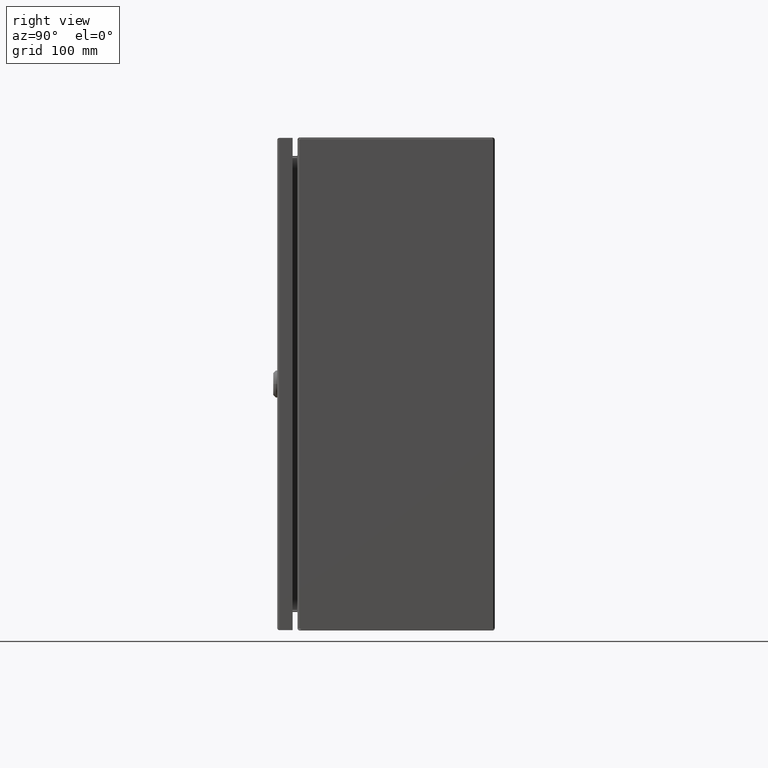
[diagram: clean part render]
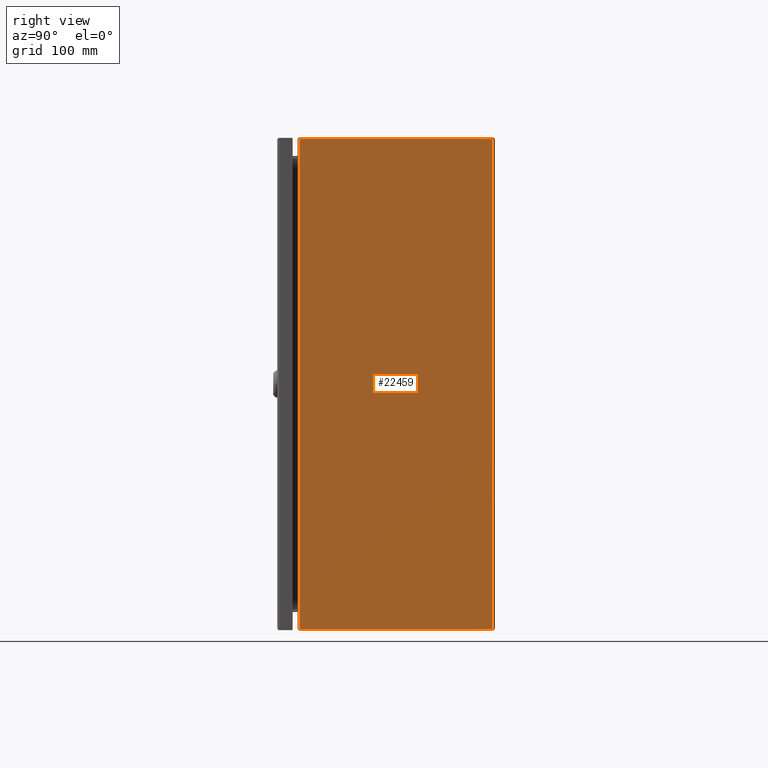
[diagram: same view with one face highlighted and labeled with its STEP entity id]
A machine part, right view. The second image highlights one B-rep face of the part: STEP entity #22459.
In plain terms, the highlighted planar face has unit normal (-1, -0, 0).
Its self-contained STEP definition (entity closure, byte-faithful):
#386 = CARTESIAN_POINT ( 'NONE',  ( 10.00000000000000000, -7.852421903868839870, 9.692888644601419301 ) ) ;
#673 = CARTESIAN_POINT ( 'NONE',  ( 10.00000000000000000, -0.05700000000000000205, -69.44150000000000489 ) ) ;
#1092 = VERTEX_POINT ( 'NONE', #34432 ) ;
#1360 = VERTEX_POINT ( 'NONE', #30995 ) ;
#1929 = ORIENTED_EDGE ( 'NONE', *, *, #3850, .F. ) ;
#2056 = CARTESIAN_POINT ( 'NONE',  ( 9.999999999999998224, -0.08600000000000115885, 9.913999999999999702 ) ) ;
#3045 = DIRECTION ( 'NONE',  ( 0.0000000000000000000, -1.000000000000000000, 0.0000000000000000000 ) ) ;
#3850 = EDGE_CURVE ( 'NONE', #1092, #20268, #32534, .T. ) ;
#4402 = VECTOR ( 'NONE', #31241, 39.37007874015748143 ) ;
#4451 = EDGE_CURVE ( 'NONE', #32431, #14954, #17624, .T. ) ;
#4660 = AXIS2_PLACEMENT_3D ( 'NONE', #386, #31855, #3045 ) ;
#6118 = ORIENTED_EDGE ( 'NONE', *, *, #4451, .F. ) ;
#6170 = LINE ( 'NONE', #17847, #11849 ) ;
#6939 = FACE_OUTER_BOUND ( 'NONE', #23480, .T. ) ;
#9629 = ORIENTED_EDGE ( 'NONE', *, *, #37531, .F. ) ;
#9721 = CARTESIAN_POINT ( 'NONE',  ( 10.00000000000000178, -7.852421903868830100, 9.942888644601380221 ) ) ;
#10313 = CARTESIAN_POINT ( 'NONE',  ( 10.00000000000000000, -0.05700000000000000205, -9.942888644601380221 ) ) ;
#11365 = VERTEX_POINT ( 'NONE', #27537 ) ;
#11849 = VECTOR ( 'NONE', #17289, 39.37007874015748143 ) ;
#12307 = DIRECTION ( 'NONE',  ( -1.000000000000000000, -2.771339582717989839E-16, 1.573611165464029883E-17 ) ) ;
#12591 = DIRECTION ( 'NONE',  ( -1.000000000000000000, -3.713031427099139786E-16, 1.573611165464029883E-17 ) ) ;
#12783 = DIRECTION ( 'NONE',  ( 0.0000000000000000000, -1.000000000000000000, 0.0000000000000000000 ) ) ;
#13200 = LINE ( 'NONE', #10313, #13582 ) ;
#13582 = VECTOR ( 'NONE', #19116, 39.37007874015748143 ) ;
#14954 = VERTEX_POINT ( 'NONE', #20144 ) ;
#15044 = ORIENTED_EDGE ( 'NONE', *, *, #35451, .F. ) ;
#15889 = AXIS2_PLACEMENT_3D ( 'NONE', #673, #12307, #23975 ) ;
#16046 = ORIENTED_EDGE ( 'NONE', *, *, #24367, .F. ) ;
#17289 = DIRECTION ( 'NONE',  ( 1.573611165464029883E-17, 4.361010910657453997E-33, 1.000000000000000000 ) ) ;
#17624 = LINE ( 'NONE', #17989, #31178 ) ;
#17847 = CARTESIAN_POINT ( 'NONE',  ( 10.00000000000000178, -7.914000000000000590, -69.44150000000000489 ) ) ;
#17939 = CARTESIAN_POINT ( 'NONE',  ( 10.00000000000000000, -7.852421903868839870, -9.692888644601415749 ) ) ;
#17989 = CARTESIAN_POINT ( 'NONE',  ( 10.00000000000000178, -0.05700000000000000205, 9.942888644601380221 ) ) ;
#18418 = PLANE ( 'NONE',  #15889 ) ;
#19116 = DIRECTION ( 'NONE',  ( 2.771339582717989839E-16, -1.000000000000000000, 0.0000000000000000000 ) ) ;
#20144 = CARTESIAN_POINT ( 'NONE',  ( 10.00000000000000000, -0.08599999999999920208, 9.942888644601380221 ) ) ;
#20268 = VERTEX_POINT ( 'NONE', #34783 ) ;
#21766 = CIRCLE ( 'NONE', #4660, 0.2499999999999998057 ) ;
#22459 = ADVANCED_FACE ( 'NONE', ( #6939 ), #18418, .F. ) ;
#22664 = ORIENTED_EDGE ( 'NONE', *, *, #25344, .F. ) ;
#23480 = EDGE_LOOP ( 'NONE', ( #9629, #15044, #1929, #22664, #16046, #6118 ) ) ;
#23975 = DIRECTION ( 'NONE',  ( 2.771339582717989839E-16, -1.000000000000000000, 0.0000000000000000000 ) ) ;
#24367 = EDGE_CURVE ( 'NONE', #14954, #11365, #34084, .T. ) ;
#25344 = EDGE_CURVE ( 'NONE', #11365, #1092, #13200, .T. ) ;
#27537 = CARTESIAN_POINT ( 'NONE',  ( 10.00000000000000000, -0.08600000000000233846, -9.942888644601380221 ) ) ;
#29249 = DIRECTION ( 'NONE',  ( -2.771339582717989839E-16, 1.000000000000000000, -0.0000000000000000000 ) ) ;
#30995 = CARTESIAN_POINT ( 'NONE',  ( 10.00000000000000000, -7.914000000000000590, 9.935186267530063731 ) ) ;
#31178 = VECTOR ( 'NONE', #29249, 39.37007874015748143 ) ;
#31241 = DIRECTION ( 'NONE',  ( 0.0000000000000000000, 0.0000000000000000000, -1.000000000000000000 ) ) ;
#31855 = DIRECTION ( 'NONE',  ( -1.000000000000000000, -3.713031427099139786E-16, 1.573611165464029883E-17 ) ) ;
#32431 = VERTEX_POINT ( 'NONE', #9721 ) ;
#32534 = CIRCLE ( 'NONE', #37378, 0.2499999999999998057 ) ;
#34084 = LINE ( 'NONE', #2056, #4402 ) ;
#34432 = CARTESIAN_POINT ( 'NONE',  ( 10.00000000000000000, -7.852421903868828323, -9.942888644601397985 ) ) ;
#34783 = CARTESIAN_POINT ( 'NONE',  ( 10.00000000000000000, -7.914000000000000590, -9.935186267530042414 ) ) ;
#35451 = EDGE_CURVE ( 'NONE', #20268, #1360, #6170, .T. ) ;
#37378 = AXIS2_PLACEMENT_3D ( 'NONE', #17939, #12591, #12783 ) ;
#37531 = EDGE_CURVE ( 'NONE', #1360, #32431, #21766, .T. ) ;